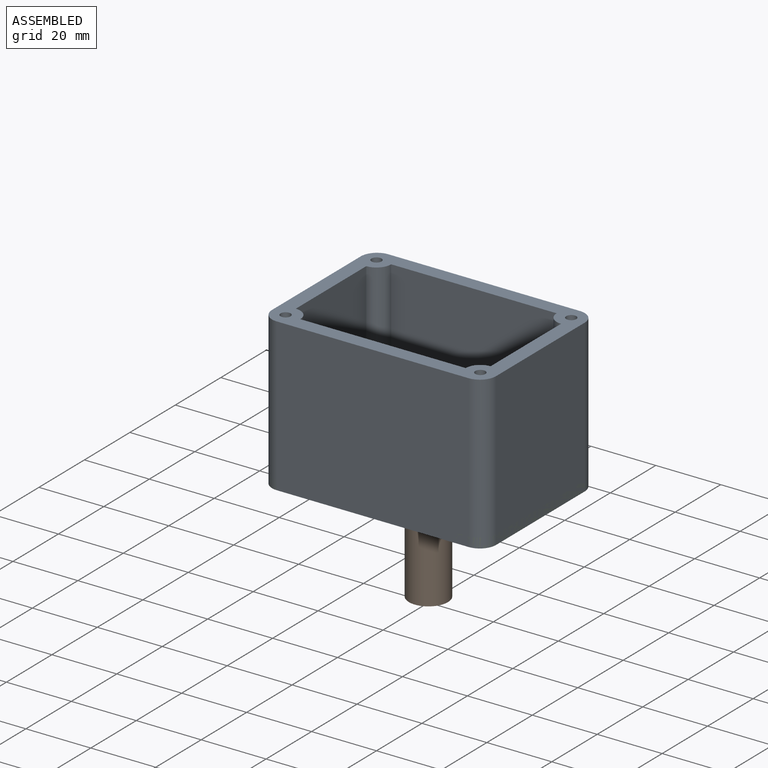
[diagram: assembled view]
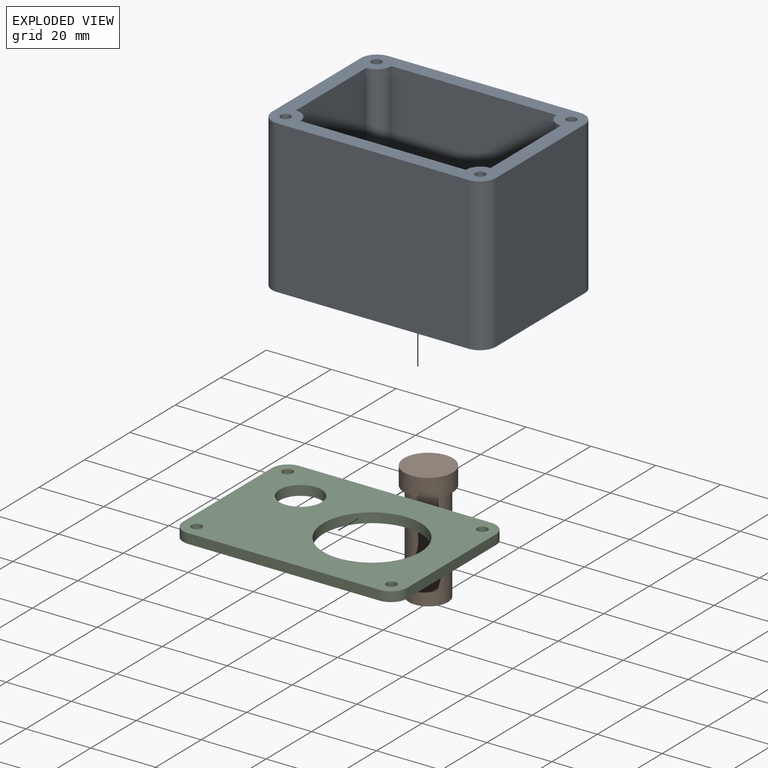
[diagram: exploded view]
GUIDED TOUR — FREECAD ASSEMBLY "usb_pd_psu_case"

This assembly has 3 components, labeled P0..P2 below (a component is one placed body or linked part; the same part can appear more than once), held together by 0 modeled joints plus 2 derived contact edges. A joint is a constraint between two components; its type names the relative motion it leaves free:
  CONTACT — a derived adjacency edge — the two components touch in the source model (clearance under 2% of the assembly's diagonal); it is measured from the geometry, not a modeled constraint.
Axis/direction vectors are unit vectors and 'through' points are millimeter coordinates, both in the assembly's world frame.

MATES
  1. CONTACT "contact_0_2": P0 <-> P2, contact direction (0.000, 0.000, -1.000) through (-34.50, -19.50, 0.00) mm (derived from contact, not a modeled constraint)
  2. CONTACT "contact_1_2": P1 <-> P2, contact direction (0.000, 0.000, 1.000) through (-4.57, -3.78, 0.00) mm (derived from contact, not a modeled constraint)

ASSEMBLY ORDER
  1. P1 — the base component [order verified]
  2. P2 [order verified]
  3. P0 [order verified]
Order-tag legend:
  [order verified] — this step's position reverses a verified removal order: the component was checked to insert without passing through the ones already placed.

Of the 3 components, 3 carry a construction recipe — the FreeCAD feature program (sketches with constraints, then the solid features that consume them) that regenerates the part from scratch, quoted from this document or from the linked companion document it references; the rest are supplied as boundary geometry only. The tour below walks the components in assembly order: each is shown spotlighted twice — in the assembled view, then in the exploded view, where a leader line traces a displaced component back to its assembled socket (components that stay in place when exploded have no leader line; saturated green if recipe-attached, orange if geometry-only; every other component desaturated gray) — followed by its recipe or geometry summary and the mates that hold it.
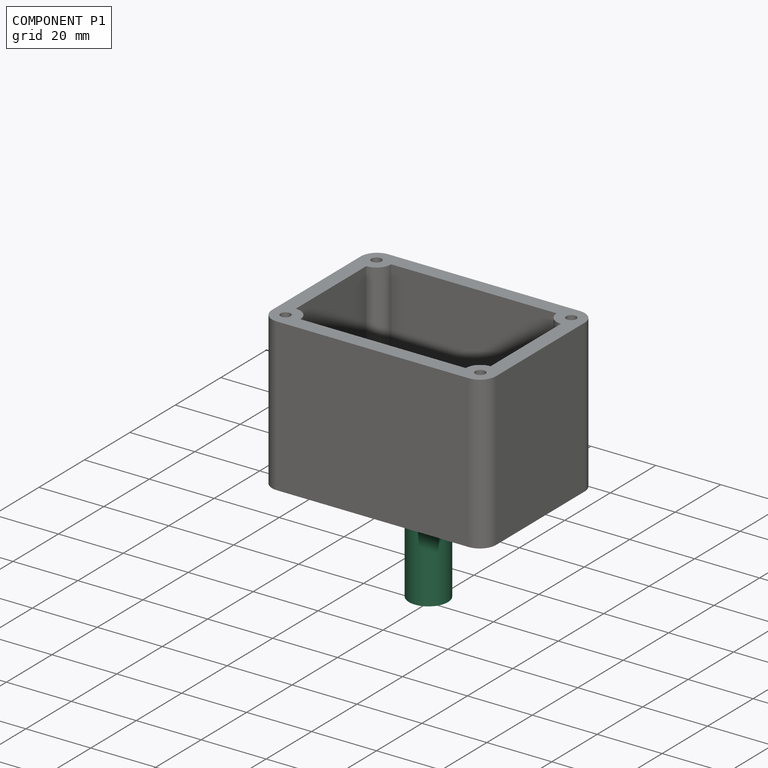
[diagram: component P1 — assembled]
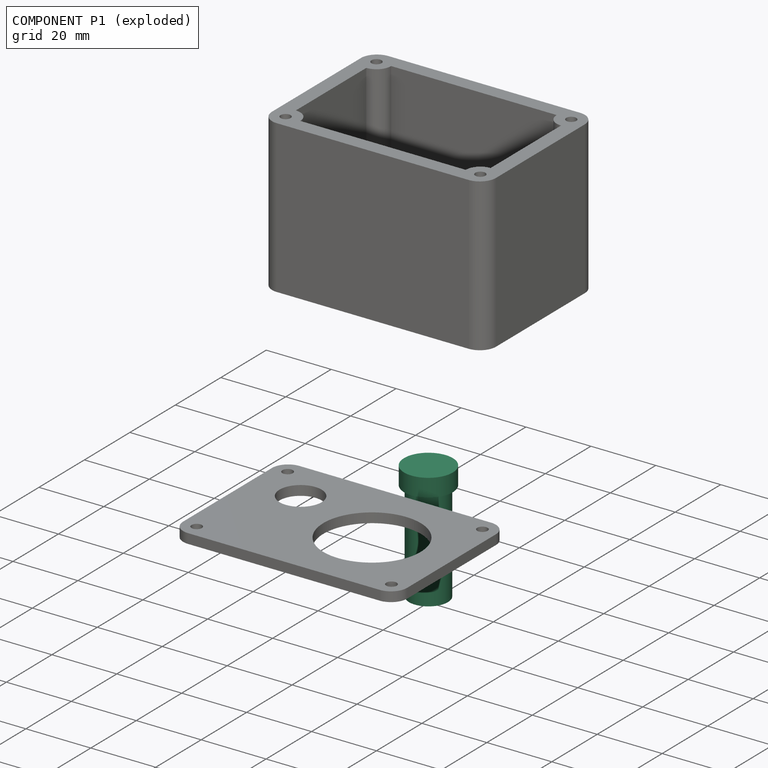
[diagram: component P1 — exploded]
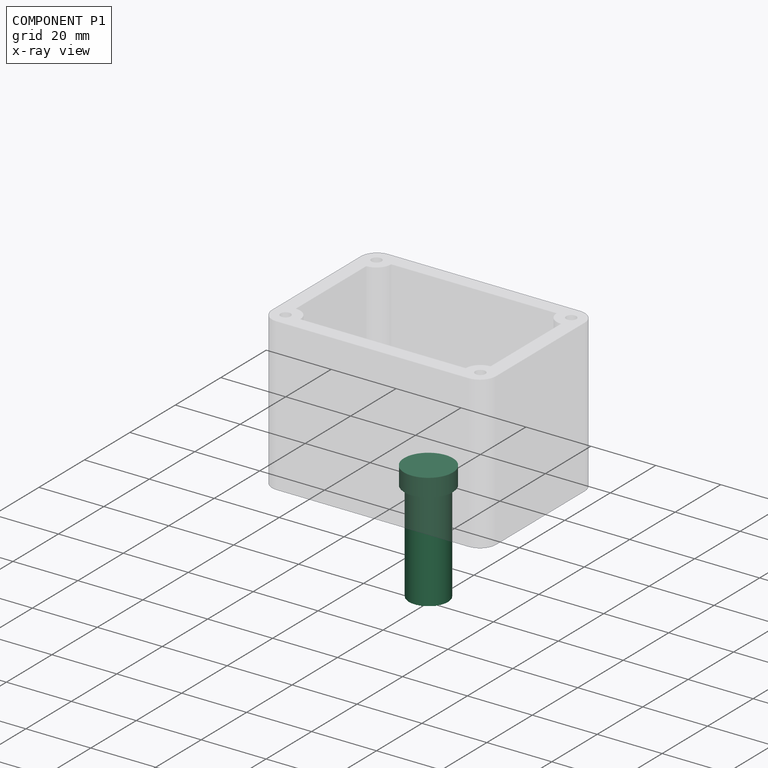
[diagram: component P1 — x-ray view]
COMPONENT P1 — recipe-attached ("Fuse Holder", modeled in this document).
Held by: resting contact with P2 (derived edge).
Construction recipe (the document's own serialized feature program — sketch geometry with constraints, then the solid features built on it; lengths are millimeters unless a unit is written):

FEATURE [PartDesign::CoordinateSystem] LCS_0004
  AttacherType = Attacher::AttachEngine3D
  MapMode = 2
  Support = -> [X_Axis006]
FEATURE [Sketcher::SketchObject] Sketch010
  FullyConstrained = true
  MapMode = 5
  Placement = pos=(0,0,0) rot=(1,0,0;1.5708rad)
  Support = -> [XZ_Plane006]
  expr: Constraints[15] = 15mm / 2
  expr: Constraints[16] = 12mm / 2
  sketch-geometry (6):
    g0: LineSegment StartX=0 StartY=5.5 StartZ=0 EndX=7.5 EndY=5.5 EndZ=0
    g1: LineSegment StartX=7.5 StartY=5.5 StartZ=0 EndX=7.5 EndY=0 EndZ=0
    g2: LineSegment StartX=7.5 StartY=0 StartZ=0 EndX=6 EndY=0 EndZ=0
    g3: LineSegment StartX=6 StartY=0 StartZ=0 EndX=6 EndY=-31 EndZ=0
    g4: LineSegment StartX=6 StartY=-31 StartZ=0 EndX=0 EndY=-31 EndZ=0
    g5: LineSegment StartX=0 StartY=-31 StartZ=0 EndX=0 EndY=5.5 EndZ=0
  constraints (18):
    c: PointOnObject(g0,g-2)
    c: Horizontal(g0)
    c: Coincident(g0,g1)
    c: PointOnObject(g1,g-1)
    c: Coincident(g1,g2)
    c: PointOnObject(g2,g-1)
    c: Coincident(g2,g3)
    c: Vertical(g3)
    c: Coincident(g3,g4)
    c: PointOnObject(g4,g-2)
    c: Coincident(g4,g5)
    c: Coincident(g5,g0)
    c: Vertical(g1)
    c: Horizontal(g4)
    c: DistanceY(g3,g3) = 31
    c: DistanceX(g0,g0) = 7.5
    c: DistanceX(g4,g4) = 6
    c: DistanceY(g1,g1) = 5.5
FEATURE [PartDesign::Revolution] Revolution
  Angle = 360
  Axis = (0,2e-16,1)
  Base = (0,0,0)
  Placement = pos=(0,0,0) rot=(1,0,0;1.5708rad)
  Profile = -> Sketch010
  ReferenceAxis = -> Sketch010 [V_Axis]
FEATURE [PartDesign::Body] Fuse_Holder_Body  label="Fuse Holder Body"
  Group = -> [LCS_0004,Sketch010,Revolution]
  Origin = -> Origin006
  Tip = -> Revolution
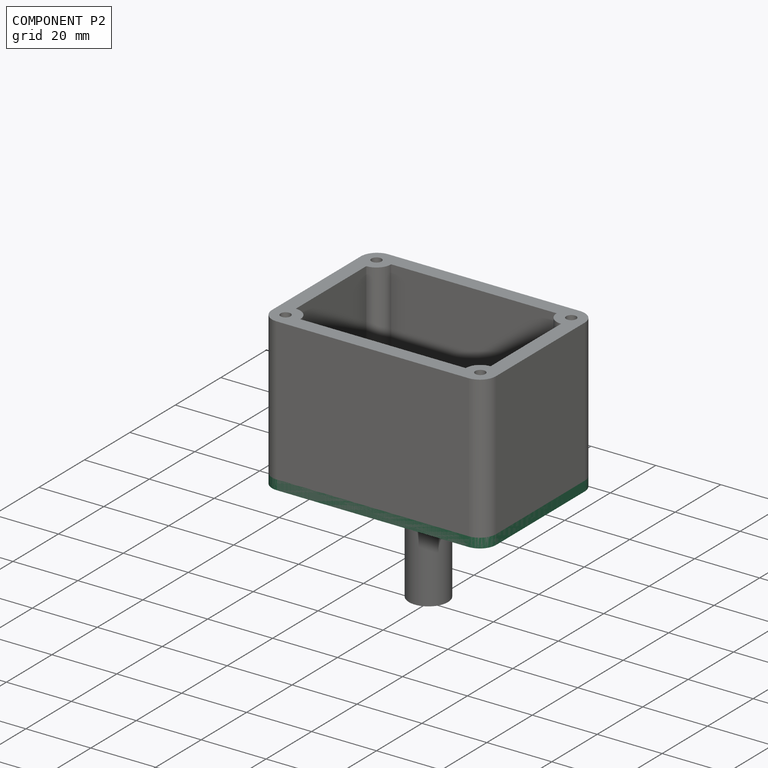
[diagram: component P2 — assembled]
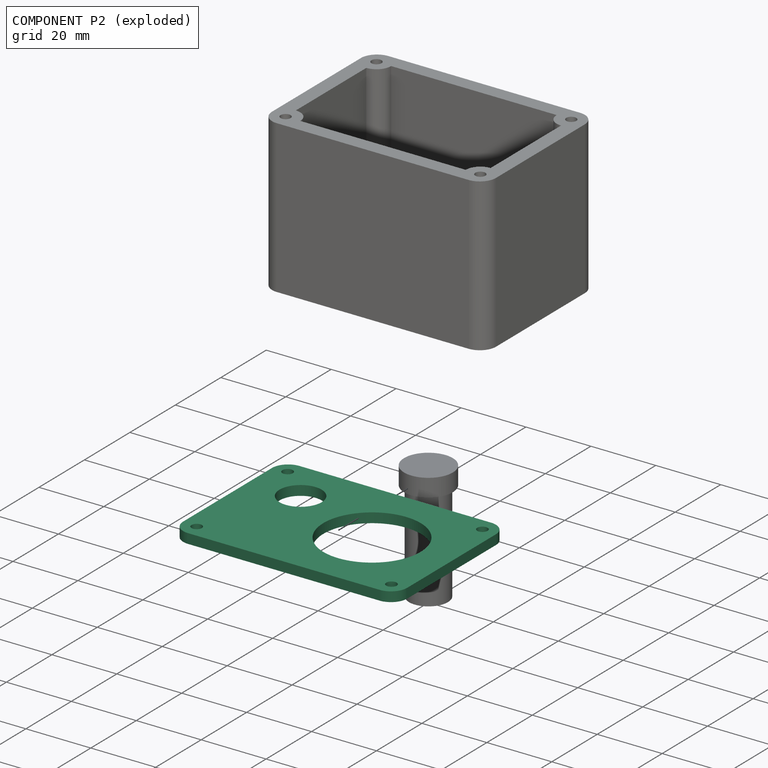
[diagram: component P2 — exploded]
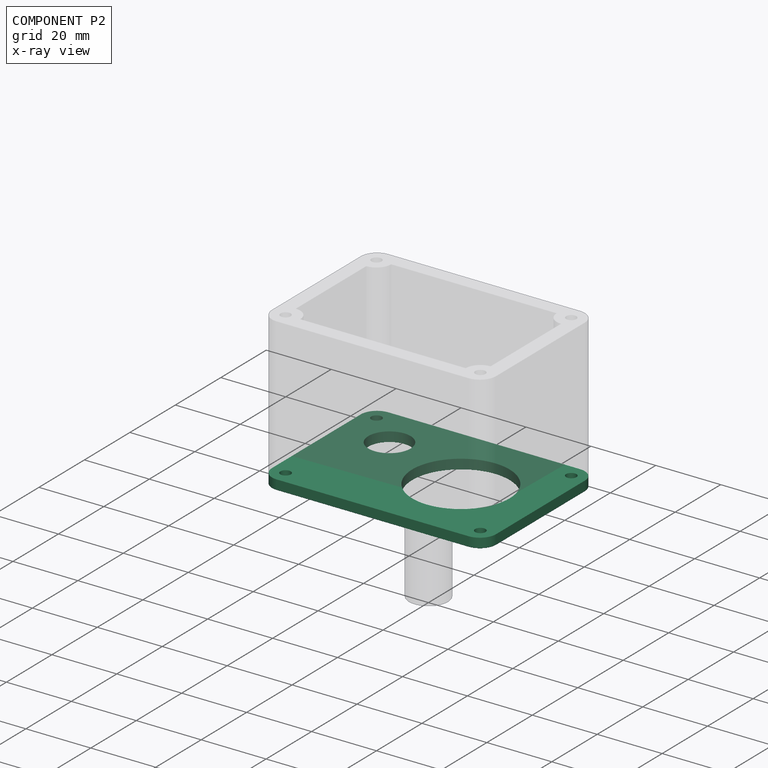
[diagram: component P2 — x-ray view]
COMPONENT P2 — recipe-attached ("Lid", modeled in this document).
Held by: resting contact with P0 (derived edge); resting contact with P1 (derived edge).
Construction recipe (the document's own serialized feature program — sketch geometry with constraints, then the solid features built on it; lengths are millimeters unless a unit is written):

FEATURE [PartDesign::Plane] DatumPlane  label="Lid Panel Bottom"
  Length = 80.7473
  MapMode = 5
  ResizeMode = 0
  Support = -> [XY_Plane004]
  Width = 61.7473
FEATURE [PartDesign::Plane] DatumPlane001  label="Lid Panel Top"
  AttachmentOffset = pos=(0,0,3) rot=(0,0,1;0rad)
  Length = 80.7473
  MapMode = 5
  Placement = pos=(0,0,3) rot=(0,0,1;0rad)
  ResizeMode = 0
  Support = -> [XY_Plane004]
  Width = 61.7473
  expr: .AttachmentOffset.Base.z = Variables.lid_thickness
FEATURE [Sketcher::SketchObject] Sketch
  FullyConstrained = true
  MapMode = 5
  Support = -> [DatumPlane]
  expr: .Constraints.height = Variables.inner_height + 2 * Variables.wall_thickness
  expr: .Constraints.width = <<Variables>>.inner_width + 2 * Variables.wall_thickness
  expr: Constraints[29] = Variables.corner_radius
  sketch-geometry (12):
    g0: LineSegment StartX=-34.5 StartY=24.5 StartZ=0 EndX=34.5 EndY=24.5 EndZ=0
    g1: LineSegment StartX=34.5 StartY=24.5 StartZ=0 EndX=34.5 EndY=-24.5 EndZ=0
    g2: LineSegment StartX=34.5 StartY=-24.5 StartZ=0 EndX=-34.5 EndY=-24.5 EndZ=0
    g3: LineSegment StartX=-34.5 StartY=-24.5 StartZ=0 EndX=-34.5 EndY=24.5 EndZ=0
    g4: LineSegment StartX=-29.5 StartY=24.5 StartZ=0 EndX=29.5 EndY=24.5 EndZ=0
    g5: LineSegment StartX=34.5 StartY=19.5 StartZ=0 EndX=34.5 EndY=-19.5 EndZ=0
    g6: LineSegment StartX=29.5 StartY=-24.5 StartZ=0 EndX=-29.5 EndY=-24.5 EndZ=0
    g7: LineSegment StartX=-34.5 StartY=-19.5 StartZ=0 EndX=-34.5 EndY=19.5 EndZ=0
    g8: ArcOfCircle CenterX=-29.5 CenterY=19.5 CenterZ=0 NormalX=0 NormalY=0 NormalZ=1 AngleXU=0 Radius=5 StartAngle=1.5708 EndAngle=3.14159
    g9: ArcOfCircle CenterX=-29.5 CenterY=-19.5 CenterZ=0 NormalX=0 NormalY=0 NormalZ=1 AngleXU=0 Radius=5 StartAngle=3.14159 EndAngle=4.71239
    g10: ArcOfCircle CenterX=29.5 CenterY=-19.5 CenterZ=0 NormalX=0 NormalY=0 NormalZ=1 AngleXU=0 Radius=5 StartAngle=4.71239 EndAngle=6.28319
    g11: ArcOfCircle CenterX=29.5 CenterY=19.5 CenterZ=0 NormalX=0 NormalY=0 NormalZ=1 AngleXU=0 Radius=5 StartAngle=1e-16 EndAngle=1.5708
  constraints (30):
    c: Coincident(g0,g1)
    c: Coincident(g1,g2)
    c: Coincident(g2,g3)
    c: Coincident(g3,g0)
    c: Horizontal(g2)
    c: Vertical(g3)
    c: Symmetric(g0,g0,g-2)
    c: Symmetric(g0,g1,g-1)
    c: DistanceX(g0,g0) = 69  'width'
    c: DistanceY(g1,g1) = 49  'height'
    c: Horizontal(g4)
    c: Horizontal(g6)
    c: Vertical(g5)
    c: Vertical(g7)
    c: Tangent(g4,g8) = 1.5708
    c: Tangent(g7,g8) = 1.5708
    c: Tangent(g7,g9) = 1.5708
    c: Tangent(g6,g9) = 1.5708
    c: Tangent(g6,g10) = 1.5708
    c: Tangent(g5,g10) = 1.5708
    c: Tangent(g5,g11) = 1.5708
    c: Tangent(g4,g11) = 1.5708
    c: PointOnObject(g4,g0)
    c: PointOnObject(g7,g3)
    c: PointOnObject(g5,g1)
    c: PointOnObject(g6,g2)
    c: Equal(g8,g9)
    c: Equal(g9,g10)
    c: Equal(g10,g11)
    c: Radius(g9) = 5
FEATURE [PartDesign::Pad] Pad  label="Lid Panel"
  Direction = (0,0,1)
  Length = 10
  Length2 = 10
  Profile = -> Sketch
  ReferenceAxis = -> Sketch [N_Axis]
  Type = 3
  UpToFace = -> DatumPlane001 [Plane]
FEATURE [Sketcher::SketchObject] Sketch001
  FullyConstrained = true
  MapMode = 5
  Placement = pos=(0,0,3) rot=(0,0,1;0rad)
  Support = -> [DatumPlane001]
  expr: Constraints[17] = Variables.lid_mounting_hole_diameter
  expr: Constraints[8] = Variables.inner_width
  expr: Constraints[9] = Variables.inner_height
  sketch-geometry (8):
    g0: LineSegment StartX=-30 StartY=20 StartZ=0 EndX=30 EndY=20 EndZ=0
    g1: LineSegment StartX=30 StartY=20 StartZ=0 EndX=30 EndY=-20 EndZ=0
    g2: LineSegment StartX=30 StartY=-20 StartZ=0 EndX=-30 EndY=-20 EndZ=0
    g3: LineSegment StartX=-30 StartY=-20 StartZ=0 EndX=-30 EndY=20 EndZ=0
    g4: Circle CenterX=-30 CenterY=20 CenterZ=0 NormalX=0 NormalY=0 NormalZ=1 AngleXU=0 Radius=1.6
    g5: Circle CenterX=30 CenterY=20 CenterZ=0 NormalX=0 NormalY=0 NormalZ=1 AngleXU=0 Radius=1.6
    g6: Circle CenterX=30 CenterY=-20 CenterZ=0 NormalX=0 NormalY=0 NormalZ=1 AngleXU=0 Radius=1.6
    g7: Circle CenterX=-30 CenterY=-20 CenterZ=0 NormalX=0 NormalY=0 NormalZ=1 AngleXU=0 Radius=1.6
  constraints (18):
    c: Coincident(g0,g1)
    c: Coincident(g1,g2)
    c: Coincident(g2,g3)
    c: Coincident(g3,g0)
    c: Horizontal(g2)
    c: Vertical(g3)
    c: Symmetric(g0,g0,g-2)
    c: Symmetric(g0,g1,g-1)
    c: DistanceX(g0,g0) = 60
    c: DistanceY(g1,g1) = 40
    c: Coincident(g4,g0)
    c: Coincident(g5,g0)
    c: Coincident(g6,g1)
    c: Coincident(g7,g2)
    c: Equal(g4,g5)
    c: Equal(g5,g6)
    c: Equal(g6,g7)
    c: Diameter(g7) = 3.2
FEATURE [PartDesign::Pocket] Pocket  label="Lid Mounting Holes"
  BaseFeature = -> Pad
  Direction = (0,0,-1)
  Length = 0
  Length2 = 5
  Profile = -> Sketch001
  ReferenceAxis = -> Sketch001 [N_Axis]
  Type = 3
  UpToFace = -> DatumPlane [Plane]
FEATURE [PartDesign::CoordinateSystem] Local_CS  label="Lid Body Lower Left Mounting Hole Bottom"
  AttacherType = Attacher::AttachEngine3D
  MapMode = 45
  Placement = pos=(-30,-20,0) rot=(0,0,-1;1e-05rad)
  Support = -> [Pocket]
FEATURE [Sketcher::SketchObject] Sketch006
  FullyConstrained = true
  MapMode = 5
  Placement = pos=(0,0,3) rot=(0,0,1;0rad)
  Support = -> [DatumPlane001]
  sketch-geometry (2):
    g0: Circle CenterX=10 CenterY=0 CenterZ=0 NormalX=0 NormalY=0 NormalZ=1 AngleXU=0 Radius=15
    g1: Circle CenterX=-19 CenterY=10 CenterZ=0 NormalX=0 NormalY=0 NormalZ=1 AngleXU=0 Radius=6.5
  constraints (6):
    c: PointOnObject(g0,g-1)
    c: Diameter(g0) = 30
    c: Diameter(g1) = 13
    c: DistanceX(g-1,g0) = 10
    c: DistanceX(g1,g-1) = 19
    c: DistanceY(g-1,g1) = 10
FEATURE [PartDesign::Pocket] Pocket003  label="Lid Panel Cutouts"
  BaseFeature = -> Pocket
  Direction = (0,0,-1)
  Length = 0
  Length2 = 5
  Profile = -> Sketch006
  ReferenceAxis = -> Sketch006 [N_Axis]
  Type = 3
  UpToFace = -> DatumPlane [Plane]
FEATURE [PartDesign::CoordinateSystem] Local_CS002  label="Lid Fuse Holder Hole Body"
  AttacherType = Attacher::AttachEngine3D
  MapMode = 45
  Placement = pos=(-19,10,3) rot=(0,0,1;0rad)
  Support = -> [Pocket003]
FEATURE [PartDesign::Body] Lid_Body  label="Lid Body"
  Group = -> [DatumPlane,DatumPlane001,Sketch,Pad,Sketch001,Pocket,Local_CS,Sketch006,Pocket003,Local_CS002]
  Origin = -> Origin004
  Tip = -> Pocket003
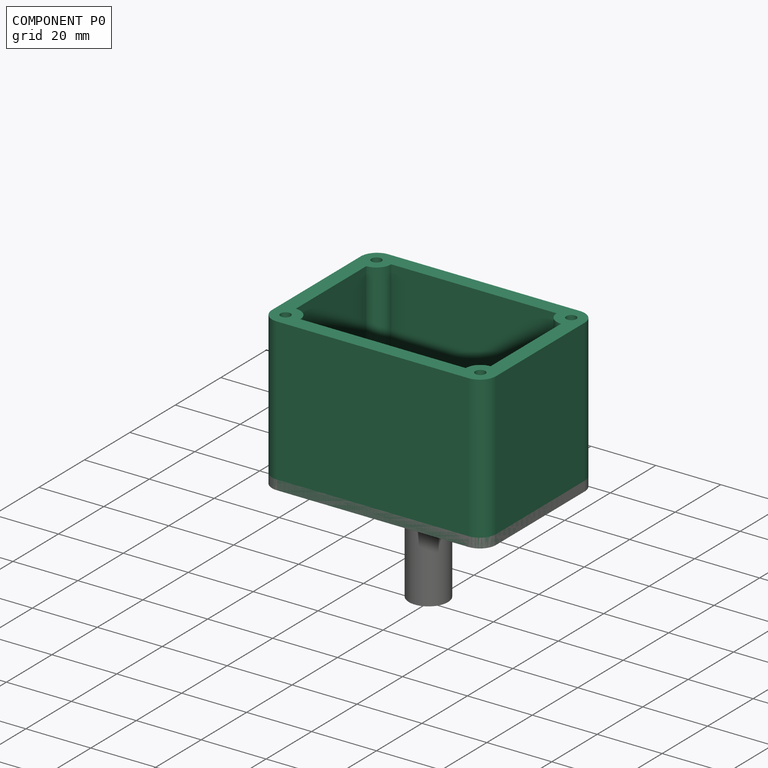
[diagram: component P0 — assembled]
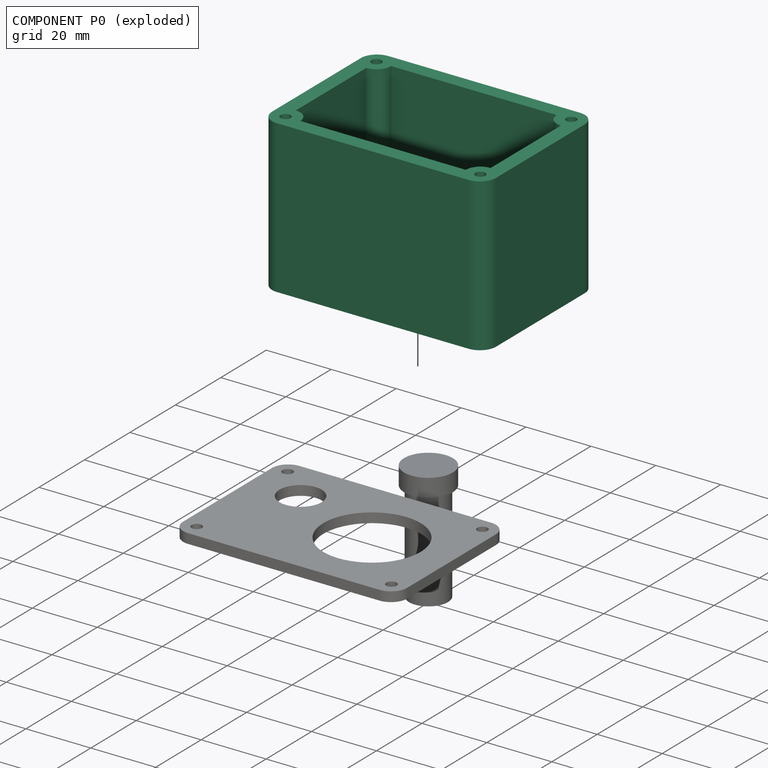
[diagram: component P0 — exploded]
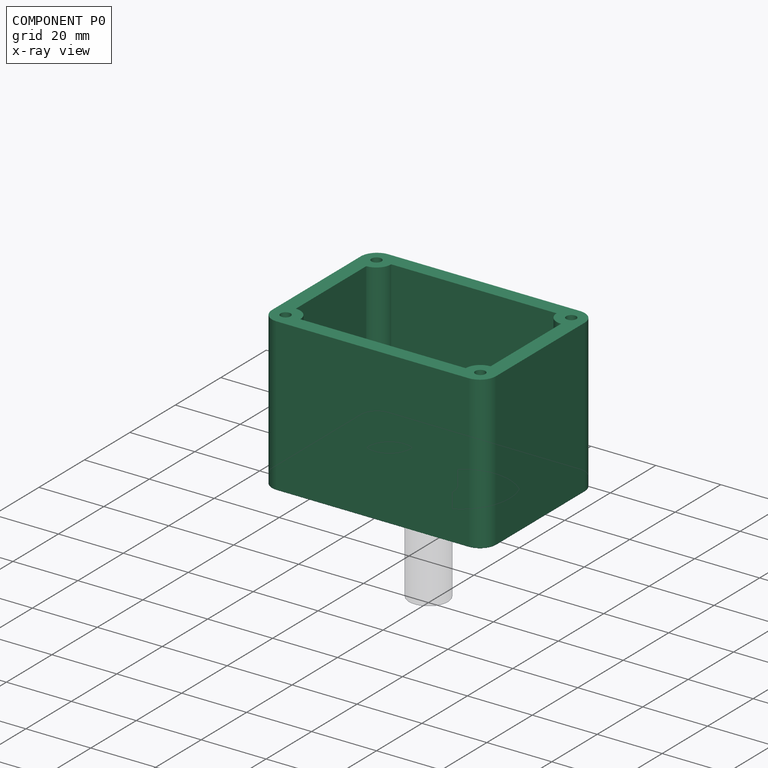
[diagram: component P0 — x-ray view]
COMPONENT P0 — recipe-attached ("Box", modeled in this document).
Held by: resting contact with P2 (derived edge).
Construction recipe (the document's own serialized feature program — sketch geometry with constraints, then the solid features built on it; lengths are millimeters unless a unit is written):

FEATURE [PartDesign::CoordinateSystem] LCS_0002
  AttacherType = Attacher::AttachEngine3D
  MapMode = 2
  Support = -> [X_Axis003]
FEATURE [PartDesign::Plane] DatumPlane002  label="Box Body Outer Bottom"
  Length = 80.7473
  MapMode = 5
  ResizeMode = 0
  Support = -> [XY_Plane003]
  Width = 61.7473
FEATURE [PartDesign::Plane] DatumPlane003  label="Box Body Inner Bottom"
  AttachmentOffset = pos=(0,0,2) rot=(0,0,1;0rad)
  Length = 80.7473
  MapMode = 5
  Placement = pos=(0,0,2) rot=(0,0,1;0rad)
  ResizeMode = 0
  Support = -> [XY_Plane003]
  Width = 61.7473
  expr: .AttachmentOffset.Base.z = Variables.base_thickness
FEATURE [PartDesign::Plane] DatumPlane004  label="Box Body Top"
  AttachmentOffset = pos=(0,0,45) rot=(0,0,1;0rad)
  Length = 80.7473
  MapMode = 5
  Placement = pos=(0,0,47) rot=(0,0,1;0rad)
  ResizeMode = 0
  Support = -> [DatumPlane003]
  Width = 61.7473
  expr: .AttachmentOffset.Base.z = Variables.inner_depth
FEATURE [Sketcher::SketchObject] Sketch002
  FullyConstrained = true
  MapMode = 5
  Support = -> [DatumPlane002]
  expr: .Constraints.height = Variables.inner_height + 2 * Variables.wall_thickness
  expr: .Constraints.width = Variables.inner_width + 2 * Variables.wall_thickness
  expr: Constraints[29] = Variables.corner_radius
  sketch-geometry (12):
    g0: LineSegment StartX=-34.5 StartY=24.5 StartZ=0 EndX=34.5 EndY=24.5 EndZ=0
    g1: LineSegment StartX=34.5 StartY=24.5 StartZ=0 EndX=34.5 EndY=-24.5 EndZ=0
    g2: LineSegment StartX=34.5 StartY=-24.5 StartZ=0 EndX=-34.5 EndY=-24.5 EndZ=0
    g3: LineSegment StartX=-34.5 StartY=-24.5 StartZ=0 EndX=-34.5 EndY=24.5 EndZ=0
    g4: LineSegment StartX=-29.5 StartY=24.5 StartZ=0 EndX=29.5 EndY=24.5 EndZ=0
    g5: LineSegment StartX=34.5 StartY=19.5 StartZ=0 EndX=34.5 EndY=-19.5 EndZ=0
    g6: LineSegment StartX=29.5 StartY=-24.5 StartZ=0 EndX=-29.5 EndY=-24.5 EndZ=0
    g7: LineSegment StartX=-34.5 StartY=-19.5 StartZ=0 EndX=-34.5 EndY=19.5 EndZ=0
    g8: ArcOfCircle CenterX=-29.5 CenterY=19.5 CenterZ=0 NormalX=0 NormalY=0 NormalZ=1 AngleXU=0 Radius=5 StartAngle=1.5708 EndAngle=3.14159
    g9: ArcOfCircle CenterX=-29.5 CenterY=-19.5 CenterZ=0 NormalX=0 NormalY=0 NormalZ=1 AngleXU=0 Radius=5 StartAngle=3.14159 EndAngle=4.71239
    g10: ArcOfCircle CenterX=29.5 CenterY=-19.5 CenterZ=0 NormalX=0 NormalY=0 NormalZ=1 AngleXU=0 Radius=5 StartAngle=4.71239 EndAngle=6.28319
    g11: ArcOfCircle CenterX=29.5 CenterY=19.5 CenterZ=0 NormalX=0 NormalY=0 NormalZ=1 AngleXU=0 Radius=5 StartAngle=-9e-16 EndAngle=1.5708
  constraints (30):
    c: Coincident(g0,g1)
    c: Coincident(g1,g2)
    c: Coincident(g2,g3)
    c: Coincident(g3,g0)
    c: Horizontal(g2)
    c: Vertical(g3)
    c: Symmetric(g0,g0,g-2)
    c: Symmetric(g0,g1,g-1)
    c: DistanceX(g0,g0) = 69  'width'
    c: DistanceY(g1,g1) = 49  'height'
    c: Horizontal(g4)
    c: Horizontal(g6)
    c: Vertical(g5)
    c: Vertical(g7)
    c: Tangent(g4,g8) = 1.5708
    c: Tangent(g7,g8) = 1.5708
    c: Tangent(g7,g9) = 1.5708
    c: Tangent(g6,g9) = 1.5708
    c: Tangent(g6,g10) = 1.5708
    c: Tangent(g5,g10) = 1.5708
    c: Tangent(g4,g11) = 1.5708
    c: Tangent(g5,g11) = 1.5708
    c: Equal(g8,g9)
    c: Equal(g9,g10)
    c: Equal(g10,g11)
    c: PointOnObject(g4,g0)
    c: PointOnObject(g7,g3)
    c: PointOnObject(g5,g1)
    c: PointOnObject(g6,g2)
    c: Radius(g9) = 5
FEATURE [PartDesign::Pad] Pad001  label="Box Body Volume"
  Direction = (0,0,1)
  Length = 10
  Length2 = 10
  Profile = -> Sketch002
  ReferenceAxis = -> Sketch002 [N_Axis]
  Type = 3
  UpToFace = -> DatumPlane004 [Plane]
FEATURE [Sketcher::SketchObject] Sketch003
  FullyConstrained = true
  MapMode = 5
  Placement = pos=(0,0,47) rot=(0,0,1;0rad)
  Support = -> [DatumPlane004]
  expr: .Constraints.height = Variables.inner_height
  expr: .Constraints.width = Variables.inner_width
  sketch-geometry (8):
    g0: LineSegment StartX=-30 StartY=20 StartZ=0 EndX=30 EndY=20 EndZ=0
    g1: LineSegment StartX=30 StartY=20 StartZ=0 EndX=30 EndY=-20 EndZ=0
    g2: LineSegment StartX=30 StartY=-20 StartZ=0 EndX=-30 EndY=-20 EndZ=0
    g3: LineSegment StartX=-30 StartY=-20 StartZ=0 EndX=-30 EndY=20 EndZ=0
    g4: LineSegment StartX=-30 StartY=20 StartZ=0 EndX=30 EndY=20 EndZ=0
    g5: LineSegment StartX=30 StartY=20 StartZ=0 EndX=30 EndY=-20 EndZ=0
    g6: LineSegment StartX=30 StartY=-20 StartZ=0 EndX=-30 EndY=-20 EndZ=0
    g7: LineSegment StartX=-30 StartY=-20 StartZ=0 EndX=-30 EndY=20 EndZ=0
  constraints (20):
    c: Coincident(g0,g1)
    c: Coincident(g1,g2)
    c: Coincident(g2,g3)
    c: Coincident(g3,g0)
    c: Horizontal(g2)
    c: Vertical(g3)
    c: Symmetric(g0,g0,g-2)
    c: Symmetric(g0,g1,g-1)
    c: DistanceX(g0,g0) = 60  'width'
    c: DistanceY(g1,g1) = 40  'height'
    c: Coincident(g4,g5)
    c: Coincident(g5,g6)
    c: Coincident(g6,g7)
    c: Coincident(g7,g4)
    c: Horizontal(g4)
    c: Horizontal(g6)
    c: Vertical(g5)
    c: Vertical(g7)
    c: Coincident(g4,g0)
    c: Coincident(g5,g1)
FEATURE [PartDesign::Pocket] Pocket001  label="Box Inner Volume"
  BaseFeature = -> Pad001
  Direction = (0,0,-1)
  Length = 0
  Length2 = 5
  Profile = -> Sketch003
  ReferenceAxis = -> Sketch003 [N_Axis]
  Type = 3
  UpToFace = -> DatumPlane003
FEATURE [Sketcher::SketchObject] Sketch004
  FullyConstrained = true
  MapMode = 5
  Placement = pos=(0,0,47) rot=(0,0,1;0rad)
  Support = -> [DatumPlane004]
  expr: .Constraints.height = Variables.inner_height
  expr: .Constraints.width = Variables.inner_width
  expr: Constraints[39] = Variables.wall_thickness
  sketch-geometry (16):
    g0: LineSegment StartX=-30 StartY=20 StartZ=0 EndX=30 EndY=20 EndZ=0
    g1: LineSegment StartX=30 StartY=20 StartZ=0 EndX=30 EndY=-20 EndZ=0
    g2: LineSegment StartX=30 StartY=-20 StartZ=0 EndX=-30 EndY=-20 EndZ=0
    g3: LineSegment StartX=-30 StartY=-20 StartZ=0 EndX=-30 EndY=20 EndZ=0
    g4: ArcOfCircle CenterX=-30 CenterY=20 CenterZ=0 NormalX=0 NormalY=0 NormalZ=1 AngleXU=0 Radius=4.5 StartAngle=4.71239 EndAngle=6.28319
    g5: LineSegment StartX=-30 StartY=20 StartZ=0 EndX=-30 EndY=15.5 EndZ=0
    g6: LineSegment StartX=-30 StartY=20 StartZ=0 EndX=-25.5 EndY=20 EndZ=0
    g7: ArcOfCircle CenterX=30 CenterY=20 CenterZ=0 NormalX=0 NormalY=0 NormalZ=1 AngleXU=0 Radius=4.5 StartAngle=3.14159 EndAngle=4.71239
    g8: ArcOfCircle CenterX=30 CenterY=-20 CenterZ=0 NormalX=0 NormalY=0 NormalZ=1 AngleXU=0 Radius=4.5 StartAngle=1.5708 EndAngle=3.14159
    g9: ArcOfCircle CenterX=-30 CenterY=-20 CenterZ=0 NormalX=0 NormalY=0 NormalZ=1 AngleXU=0 Radius=4.5 StartAngle=0 EndAngle=1.5708
    g10: LineSegment StartX=-30 StartY=-15.5 StartZ=0 EndX=-30 EndY=-20 EndZ=0
    g11: LineSegment StartX=-30 StartY=-20 StartZ=0 EndX=-25.5 EndY=-20 EndZ=0
    g12: LineSegment StartX=30 StartY=-15.5 StartZ=0 EndX=30 EndY=-20 EndZ=0
    g13: LineSegment StartX=30 StartY=-20 StartZ=0 EndX=25.5 EndY=-20 EndZ=0
    g14: LineSegment StartX=25.5 StartY=20 StartZ=0 EndX=30 EndY=20 EndZ=0
    g15: LineSegment StartX=30 StartY=20 StartZ=0 EndX=30 EndY=15.5 EndZ=0
  constraints (42):
    c: Coincident(g0,g1)
    c: Coincident(g1,g2)
    c: Coincident(g2,g3)
    c: Coincident(g3,g0)
    c: Horizontal(g2)
    c: Vertical(g3)
    c: Symmetric(g0,g0,g-2)
    c: Symmetric(g0,g1,g-1)
    c: DistanceX(g0,g0) = 60  'width'
    c: DistanceY(g1,g1) = 40  'height'
    c: Coincident(g4,g0)
    c: PointOnObject(g4,g0)
    c: PointOnObject(g4,g3)
    c: Coincident(g5,g4)
    c: Coincident(g5,g4)
    c: Coincident(g6,g4)
    c: Coincident(g6,g4)
    c: Coincident(g7,g0)
    c: PointOnObject(g7,g1)
    c: Coincident(g8,g1)
    c: PointOnObject(g8,g1)
    c: PointOnObject(g8,g2)
    c: Coincident(g9,g2)
    c: PointOnObject(g9,g3)
    c: Coincident(g10,g9)
    c: Coincident(g10,g9)
    c: Coincident(g11,g9)
    c: Coincident(g11,g9)
    c: Coincident(g12,g8)
    c: Coincident(g12,g8)
    c: Coincident(g13,g8)
    c: Coincident(g13,g8)
    c: Coincident(g14,g7)
    c: Coincident(g14,g7)
    c: Coincident(g15,g7)
    c: Coincident(g15,g7)
    c: Equal(g4,g7)
    c: Equal(g7,g8)
    c: Equal(g8,g9)
    c: Radius(g9) = 4.5
    c: PointOnObject(g7,g0)
    c: PointOnObject(g9,g2)
FEATURE [PartDesign::Pad] Pad002  label="Box Inner Mounting Hole Supports"
  BaseFeature = -> Pocket001
  Direction = (0,0,1)
  Length = 10
  Length2 = 10
  Profile = -> Sketch004
  ReferenceAxis = -> Sketch004 [N_Axis]
  Type = 3
  UpToFace = -> DatumPlane003
FEATURE [Sketcher::SketchObject] Sketch005
  FullyConstrained = true
  MapMode = 5
  Placement = pos=(0,0,47) rot=(0,0,1;0rad)
  Support = -> [DatumPlane004]
  expr: .Constraints.height = Variables.inner_height
  expr: .Constraints.width = Variables.inner_width
  expr: Constraints[17] = Variables.box_mounting_hole_diameter
  sketch-geometry (8):
    g0: LineSegment StartX=-30 StartY=20 StartZ=0 EndX=30 EndY=20 EndZ=0
    g1: LineSegment StartX=30 StartY=20 StartZ=0 EndX=30 EndY=-20 EndZ=0
    g2: LineSegment StartX=30 StartY=-20 StartZ=0 EndX=-30 EndY=-20 EndZ=0
    g3: LineSegment StartX=-30 StartY=-20 StartZ=0 EndX=-30 EndY=20 EndZ=0
    g4: Circle CenterX=-30 CenterY=20 CenterZ=0 NormalX=0 NormalY=0 NormalZ=1 AngleXU=0 Radius=1.55
    g5: Circle CenterX=30 CenterY=20 CenterZ=0 NormalX=0 NormalY=0 NormalZ=1 AngleXU=0 Radius=1.55
    g6: Circle CenterX=30 CenterY=-20 CenterZ=0 NormalX=0 NormalY=0 NormalZ=1 AngleXU=0 Radius=1.55
    g7: Circle CenterX=-30 CenterY=-20 CenterZ=0 NormalX=0 NormalY=0 NormalZ=1 AngleXU=0 Radius=1.55
  constraints (18):
    c: Coincident(g0,g1)
    c: Coincident(g1,g2)
    c: Coincident(g2,g3)
    c: Coincident(g3,g0)
    c: Horizontal(g2)
    c: Vertical(g3)
    c: Coincident(g4,g0)
    c: Coincident(g5,g0)
    c: Coincident(g6,g1)
    c: Coincident(g7,g2)
    c: Symmetric(g4,g5,g-2)
    c: Symmetric(g5,g6,g-1)
    c: DistanceX(g0,g0) = 60  'width'
    c: DistanceY(g1,g1) = 40  'height'
    c: Equal(g4,g5)
    c: Equal(g5,g6)
    c: Equal(g6,g7)
    c: Diameter(g7) = 3.1
FEATURE [PartDesign::Plane] DatumPlane005  label="Box Mounting Hole Depth"
  AttachmentOffset = pos=(0,0,-10) rot=(0,0,1;0rad)
  Length = 80.7473
  MapMode = 5
  Placement = pos=(0,0,37) rot=(0,0,1;0rad)
  ResizeMode = 0
  Support = -> [DatumPlane004]
  Width = 61.7473
  expr: .AttachmentOffset.Base.z = -Variables.box_mounting_hole_depth
FEATURE [PartDesign::Pocket] Pocket002  label="Box Mounting Holes"
  BaseFeature = -> Pad002
  Direction = (0,0,-1)
  Length = 0
  Length2 = 5
  Profile = -> Sketch005
  ReferenceAxis = -> Sketch005 [N_Axis]
  Type = 3
  UpToFace = -> DatumPlane005 [Plane]
FEATURE [PartDesign::CoordinateSystem] Local_CS001  label="Box Body Lower Left Mounting Hole Top"
  AttacherType = Attacher::AttachEngine3D
  MapMode = 45
  Placement = pos=(-30,-20,47) rot=(0,0,1;0rad)
  Support = -> [Pocket002]
FEATURE [PartDesign::Plane] DatumPlane006  label="Box Body Front Inner"
  AttachmentOffset = pos=(0,0,20) rot=(0,0,1;0rad)
  Length = 83.0968
  MapMode = 5
  Placement = pos=(0,-20,-4.4e-15) rot=(1,0,0;1.5708rad)
  ResizeMode = 0
  Support = -> [XZ_Plane003]
  Width = 86.0968
  expr: .AttachmentOffset.Base.z = Variables.inner_height / 2
FEATURE [PartDesign::Plane] DatumPlane007  label="Box Body Rear Inner"
  AttachmentOffset = pos=(0,0,-20) rot=(0,0,1;0rad)
  Length = 83.0968
  MapMode = 5
  Placement = pos=(0,20,4.4e-15) rot=(1,0,0;1.5708rad)
  ResizeMode = 0
  Support = -> [XZ_Plane003]
  Width = 86.0968
  expr: .AttachmentOffset.Base.z = -Variables.inner_height / 2
FEATURE [PartDesign::Plane] DatumPlane008  label="Box Body Front Outer"
  AttachmentOffset = pos=(0,0,4.5) rot=(0,0,1;0rad)
  Length = 83.0968
  MapMode = 5
  Placement = pos=(0,-24.5,-5.4e-15) rot=(1,0,0;1.5708rad)
  ResizeMode = 0
  Support = -> [DatumPlane006]
  Width = 86.0968
  expr: .AttachmentOffset.Base.z = Variables.wall_thickness
FEATURE [PartDesign::Plane] DatumPlane009  label="Box Body Rear Outer"
  AttachmentOffset = pos=(0,0,-4.5) rot=(0,0,1;0rad)
  Length = 83.0968
  MapMode = 5
  Placement = pos=(0,24.5,5.4e-15) rot=(1,0,0;1.5708rad)
  ResizeMode = 0
  Support = -> [DatumPlane007]
  Width = 86.0968
  expr: .AttachmentOffset.Base.z = -Variables.wall_thickness
FEATURE [PartDesign::Plane] DatumPlane010  label="Box Body Right Inner"
  AttachmentOffset = pos=(0,0,30) rot=(0,0,1;0rad)
  Length = 62
  MapMode = 5
  Placement = pos=(30,-6.7e-15,6.7e-15) rot=(0.57735,0.57735,0.57735;2.0944rad)
  ResizeMode = 0
  Support = -> [YZ_Plane003]
  Width = 84
  expr: .AttachmentOffset.Base.z = Variables.inner_width / 2
FEATURE [PartDesign::Plane] DatumPlane011  label="Box Body Right Outer"
  AttachmentOffset = pos=(0,0,4.5) rot=(0,0,1;0rad)
  Length = 62
  MapMode = 5
  Placement = pos=(34.5,-7.2e-15,7.2e-15) rot=(0.57735,0.57735,0.57735;2.0944rad)
  ResizeMode = 0
  Support = -> [DatumPlane010]
  Width = 84
  expr: .AttachmentOffset.Base.z = Variables.wall_thickness
FEATURE [PartDesign::Plane] DatumPlane012  label="Box Body Left Inner"
  AttachmentOffset = pos=(0,0,-30) rot=(0,0,1;0rad)
  Length = 62
  MapMode = 5
  Placement = pos=(-30,6.7e-15,-6.7e-15) rot=(0.57735,0.57735,0.57735;2.0944rad)
  ResizeMode = 0
  Support = -> [YZ_Plane003]
  Width = 84
  expr: .AttachmentOffset.Base.z = -Variables.inner_width / 2
FEATURE [PartDesign::Plane] DatumPlane013  label="Box Body Left Outer"
  AttachmentOffset = pos=(0,0,-4.5) rot=(0,0,1;0rad)
  Length = 62
  MapMode = 5
  Placement = pos=(-34.5,7.2e-15,-7.2e-15) rot=(0.57735,0.57735,0.57735;2.0944rad)
  ResizeMode = 0
  Support = -> [DatumPlane012]
  Width = 84
  expr: .AttachmentOffset.Base.z = -Variables.wall_thickness
FEATURE [Sketcher::SketchObject] Sketch007
  FullyConstrained = true
  MapMode = 5
  Placement = pos=(-34.5,7.2e-15,-7.2e-15) rot=(0.57735,0.57735,0.57735;2.0944rad)
  Support = -> [DatumPlane013]
  expr: Constraints[8] = Variables.base_thickness
  sketch-geometry (4):
    g0: LineSegment StartX=-8 StartY=10.5 StartZ=0 EndX=8 EndY=10.5 EndZ=0
    g1: LineSegment StartX=8 StartY=10.5 StartZ=0 EndX=8 EndY=2 EndZ=0
    g2: LineSegment StartX=8 StartY=2 StartZ=0 EndX=-8 EndY=2 EndZ=0
    g3: LineSegment StartX=-8 StartY=2 StartZ=0 EndX=-8 EndY=10.5 EndZ=0
  constraints (11):
    c: Coincident(g0,g1)
    c: Coincident(g1,g2)
    c: Coincident(g2,g3)
    c: Coincident(g3,g0)
    c: Horizontal(g0)
    c: Vertical(g1)
    c: Vertical(g3)
    c: Symmetric(g2,g1,g-2)
    c: DistanceY(g-1,g1) = 2
    c: DistanceY(g1,g1) = 8.5  'height'
    c: DistanceX(g0,g0) = 16
FEATURE [PartDesign::Plane] DatumPlane014
  AttachmentOffset = pos=(0,0,15.5) rot=(0,0,1;0rad)
  Length = 62
  MapMode = 5
  Placement = pos=(-14.5,4.9e-15,-4.9e-15) rot=(0.57735,0.57735,0.57735;2.0944rad)
  ResizeMode = 0
  Support = -> [DatumPlane012]
  Width = 84
  expr: .AttachmentOffset.Base.z = 20 - Variables.wall_thickness
FEATURE [Sketcher::SketchObject] Sketch008
  FullyConstrained = true
  MapMode = 5
  Placement = pos=(-30,6.7e-15,-6.7e-15) rot=(0.57735,0.57735,0.57735;2.0944rad)
  Support = -> [DatumPlane012]
  expr: Constraints[8] = Variables.base_thickness
  sketch-geometry (4):
    g0: LineSegment StartX=-11 StartY=13 StartZ=0 EndX=11 EndY=13 EndZ=0
    g1: LineSegment StartX=11 StartY=13 StartZ=0 EndX=11 EndY=2 EndZ=0
    g2: LineSegment StartX=11 StartY=2 StartZ=0 EndX=-11 EndY=2 EndZ=0
    g3: LineSegment StartX=-11 StartY=2 StartZ=0 EndX=-11 EndY=13 EndZ=0
  constraints (11):
    c: Coincident(g0,g1)
    c: Coincident(g1,g2)
    c: Coincident(g2,g3)
    c: Coincident(g3,g0)
    c: Horizontal(g0)
    c: Vertical(g1)
    c: Vertical(g3)
    c: Symmetric(g1,g2,g-2)
    c: DistanceY(g-1,g1) = 2
    c: DistanceX(g0,g0) = 22
    c: DistanceY(g3,g3) = 11  'height'
FEATURE [PartDesign::Pad] Pad003  label="Box Body XT60 Retention"
  BaseFeature = -> Pocket002
  Direction = (1,-1e-16,1e-16)
  Length = 10
  Length2 = 10
  Profile = -> Sketch008
  ReferenceAxis = -> Sketch008 [N_Axis]
  Type = 3
  UpToFace = -> DatumPlane014 [Plane]
FEATURE [PartDesign::Pocket] Pocket004  label="Box Body XT60 Retention Cutout"
  BaseFeature = -> Pad003
  Direction = (-1,0,0)
  Length = 0
  Length2 = 5
  Profile = -> Sketch007
  ReferenceAxis = -> Sketch007 [N_Axis]
  Type = 3
  UpToFace = -> DatumPlane014 [Plane]
FEATURE [PartDesign::Plane] DatumPlane015
  AttachmentOffset = pos=(0,0,8.5) rot=(0,0,1;0rad)
  Length = 80.7473
  MapMode = 5
  Placement = pos=(0,0,10.5) rot=(0,0,1;0rad)
  ResizeMode = 0
  Support = -> [DatumPlane003]
  Width = 61.7473
  expr: .AttachmentOffset.Base.z = <<Sketch007>>.Constraints.height
FEATURE [PartDesign::Plane] DatumPlane016
  AttachmentOffset = pos=(0,0,11) rot=(0,0,1;0rad)
  Length = 80.7473
  MapMode = 5
  Placement = pos=(0,0,13) rot=(0,0,1;0rad)
  ResizeMode = 0
  Support = -> [DatumPlane003]
  Width = 61.7473
  expr: .AttachmentOffset.Base.z = <<Sketch008>>.Constraints.height
FEATURE [Sketcher::SketchObject] Sketch009
  FullyConstrained = true
  MapMode = 5
  Placement = pos=(0,0,13) rot=(0,0,1;0rad)
  Support = -> [DatumPlane016]
  sketch-geometry (1):
    g0: Circle CenterX=-22 CenterY=0 CenterZ=0 NormalX=0 NormalY=0 NormalZ=1 AngleXU=0 Radius=1.5
  constraints (3):
    c: PointOnObject(g0,g-1)
    c: Diameter(g0) = 3
    c: DistanceX(g0,g-1) = 22
FEATURE [PartDesign::Pocket] Pocket005  label="Box Body XT60 Retention Screw Hole"
  BaseFeature = -> Pocket004
  Direction = (0,0,-1)
  Length = 0
  Length2 = 5
  Profile = -> Sketch009
  ReferenceAxis = -> Sketch009 [N_Axis]
  Type = 3
  UpToFace = -> DatumPlane015 [Plane]
FEATURE [PartDesign::Body] Box_Body  label="Box Body"
  Group = -> [LCS_0002,DatumPlane002,DatumPlane003,DatumPlane004,Sketch002,Pad001,Sketch003,Pocket001,Sketch004,Pad002,Sketch005,DatumPlane005,Pocket002,Local_CS001,DatumPlane006,DatumPlane008,DatumPlane007,DatumPlane009,DatumPlane010,DatumPlane011,DatumPlane012,DatumPlane013,Sketch007,DatumPlane014,Sketch008,Pad003,Pocket004,DatumPlane015,DatumPlane016,Sketch009,Pocket005]
  Origin = -> Origin003
  Tip = -> Pocket005
PROVENANCE & LICENSES
Assembly and component geometry: a FreeCAD (.FCStd) document from a public repository crawl; components, placements and joints were extracted with FreeCAD and each solid tessellated.
Construction recipes: the document's own serialized feature recipes (and, for linked parts, the recipes of companion documents from the same project).
License: as declared in the source repository (recorded in the dataset sidecar).
Joints: native FreeCAD joints and A2plus constraints are mapped to standard mate types; edges marked 'derived from contact' connect touching components and are measured from the geometry, not modeled.
Verification: 3 of this assembly's 3 components carry a construction recipe (3 from this document itself); the rest are geometry-only. Every component's tessellation passed the extraction mesh gates (mesh-volume checksum against the B-rep where available, bounding-box inflation <= 2%).
Renders: orthographic iso camera (az 35 / el 25); the floor grid conveys scale (grid pitch printed in each image; no ruler). In the exploded view each component is displaced by its stored offset vector: the offsets alone carry the explosion direction (mate normal/axis signs are not orientation cues and do not encode it), and separation distances are assigned per mate-chain, not proportionally to assembly-order depth.
